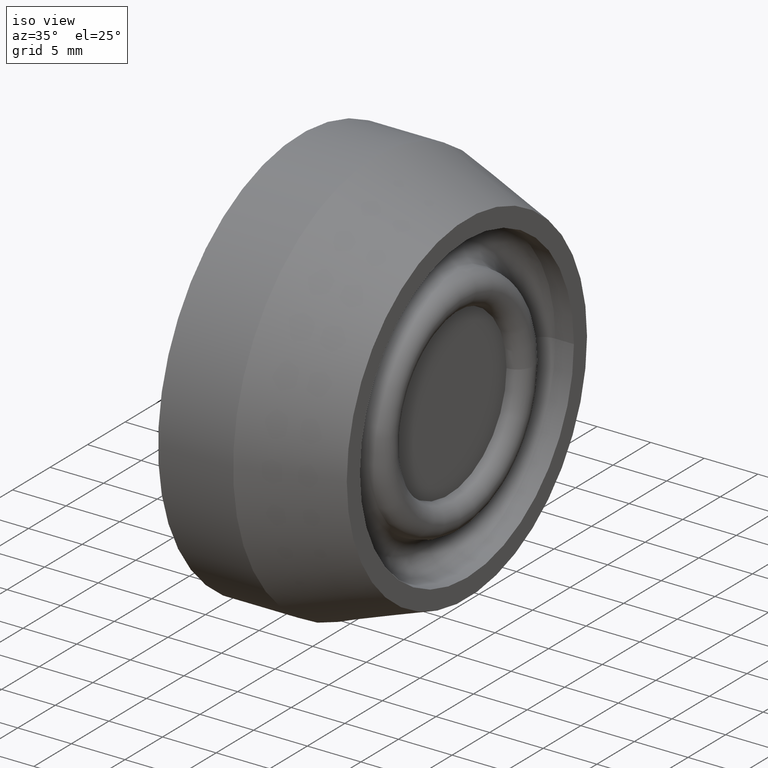
[diagram: clean part render]
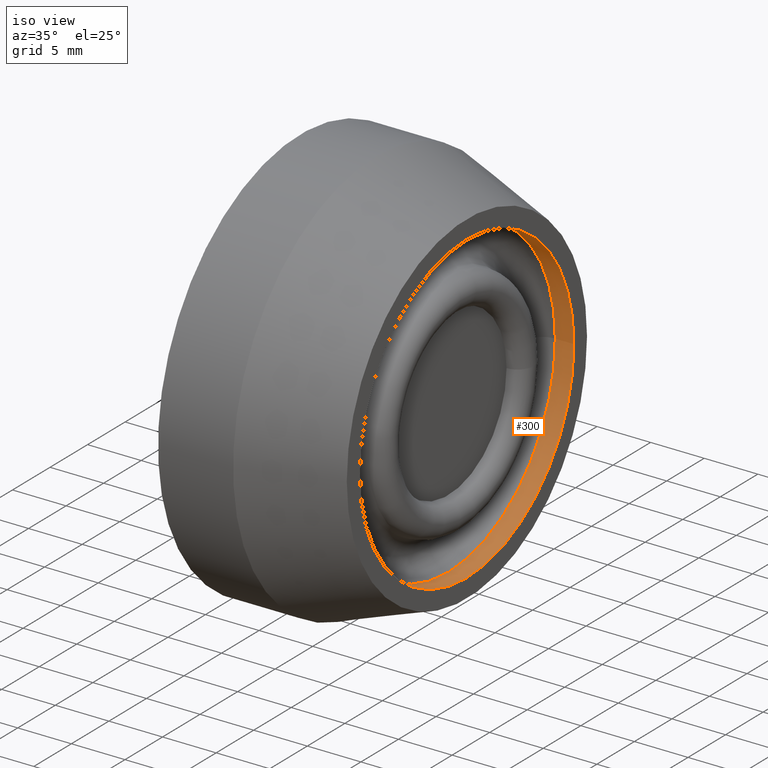
[diagram: same view with one face highlighted and labeled with its STEP entity id]
A machine part, iso view. The second image highlights one B-rep face of the part: STEP entity #300.
In plain terms, the highlighted cylindrical surface (bore or boss wall) has radius 14.25 mm, axis along (1, 0, 0).
Its self-contained STEP definition (entity closure, byte-faithful):
#269=CARTESIAN_POINT('',(-0.597371556211971,6.361111049393835,0.0));
#270=VERTEX_POINT('',#269);
#271=CARTESIAN_POINT('',(-0.597371556211970,-7.888888950606166,0.0));
#272=DIRECTION('',(1.0,0.0,0.0));
#273=DIRECTION('',(0.0,1.0,0.0));
#274=AXIS2_PLACEMENT_3D('',#271,#272,#273);
#275=CIRCLE('',#274,14.250000000000000);
#276=EDGE_CURVE('',#270,#270,#275,.T.);
#281=CARTESIAN_POINT('',(-1.463560312719328,-7.888888950606166,0.0));
#282=DIRECTION('',(1.0,0.0,0.0));
#283=DIRECTION('',(0.0,1.0,0.0));
#284=AXIS2_PLACEMENT_3D('',#281,#282,#283);
#285=CYLINDRICAL_SURFACE('',#284,14.250000000000000);
#286=CARTESIAN_POINT('',(-2.329749069226686,6.361111049393835,0.0));
#287=VERTEX_POINT('',#286);
#288=CARTESIAN_POINT('',(-2.329749069226685,-7.888888950606166,0.0));
#289=DIRECTION('',(1.0,0.0,0.0));
#290=DIRECTION('',(0.0,1.0,0.0));
#291=AXIS2_PLACEMENT_3D('',#288,#289,#290);
#292=CIRCLE('',#291,14.250000000000000);
#293=EDGE_CURVE('',#287,#287,#292,.T.);
#294=ORIENTED_EDGE('',*,*,#293,.F.);
#295=EDGE_LOOP('',(#294));
#296=FACE_OUTER_BOUND('',#295,.T.);
#297=ORIENTED_EDGE('',*,*,#276,.T.);
#298=EDGE_LOOP('',(#297));
#299=FACE_BOUND('',#298,.T.);
#300=ADVANCED_FACE('',(#296,#299),#285,.F.);